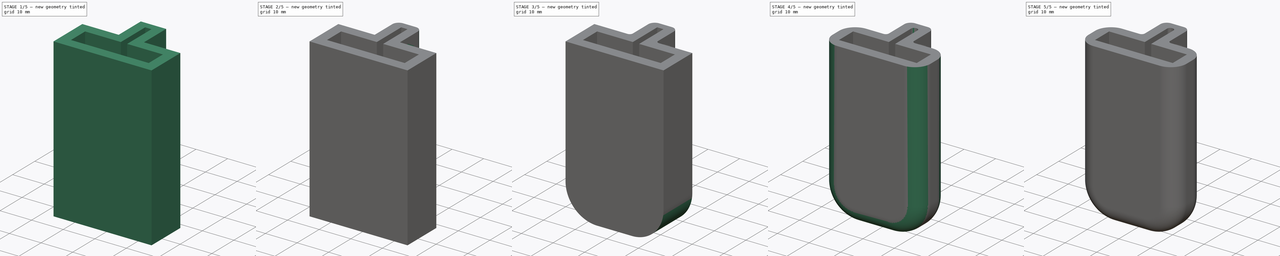
[diagram: build sequence overview — one tinted view per stage of 5, left to right]
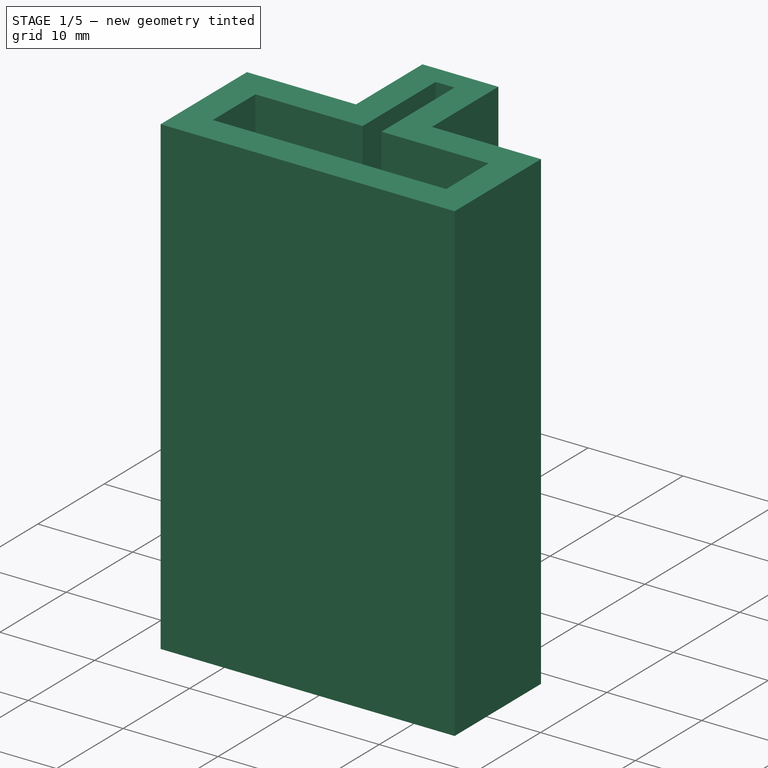
[diagram: stage 1 of 5 — iso view after this stage's code; geometry added in this stage tinted green]
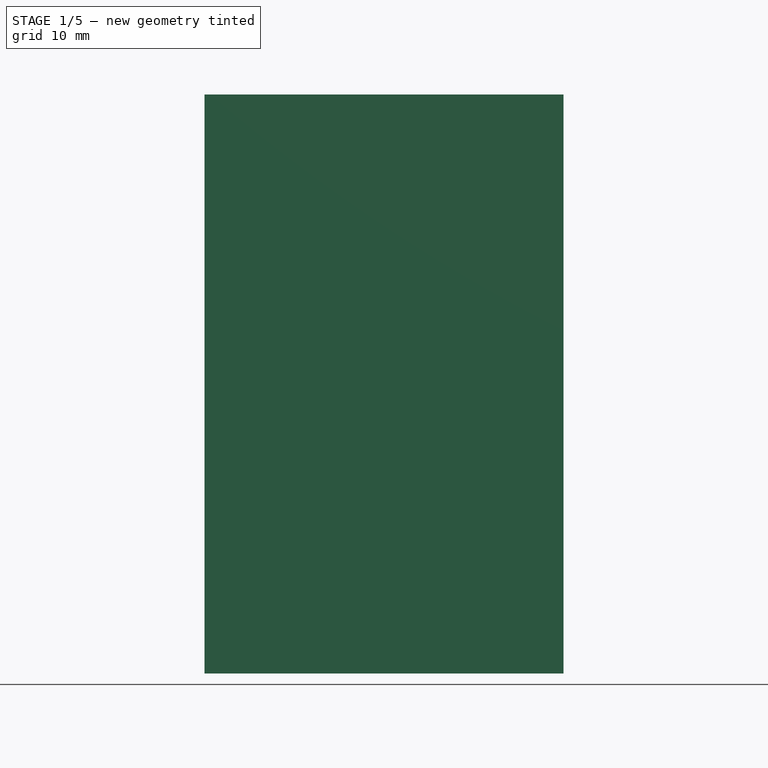
[diagram: stage 1 of 5 — front view after this stage's code; geometry added in this stage tinted green]
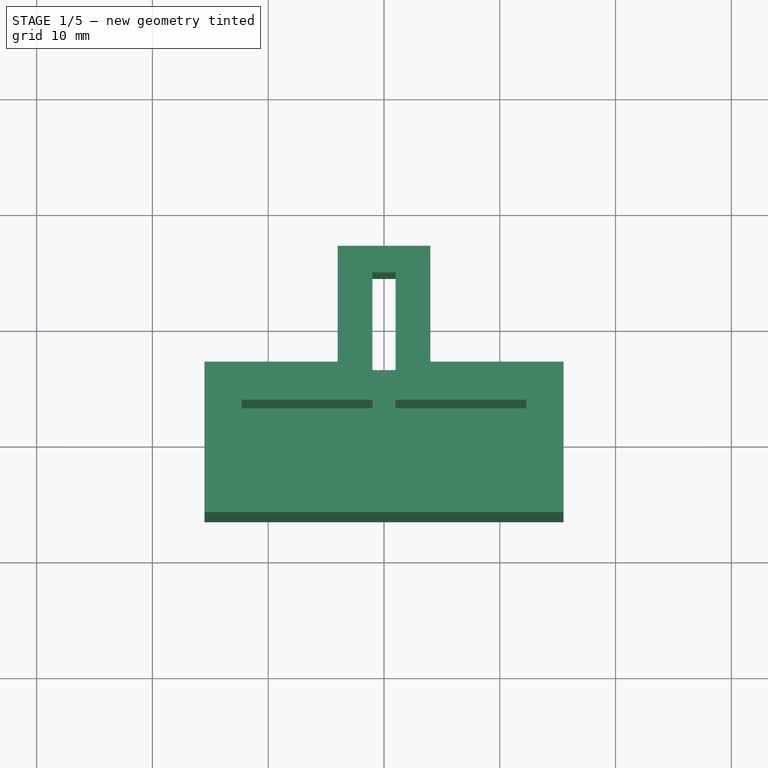
[diagram: stage 1 of 5 — top view after this stage's code; geometry added in this stage tinted green]
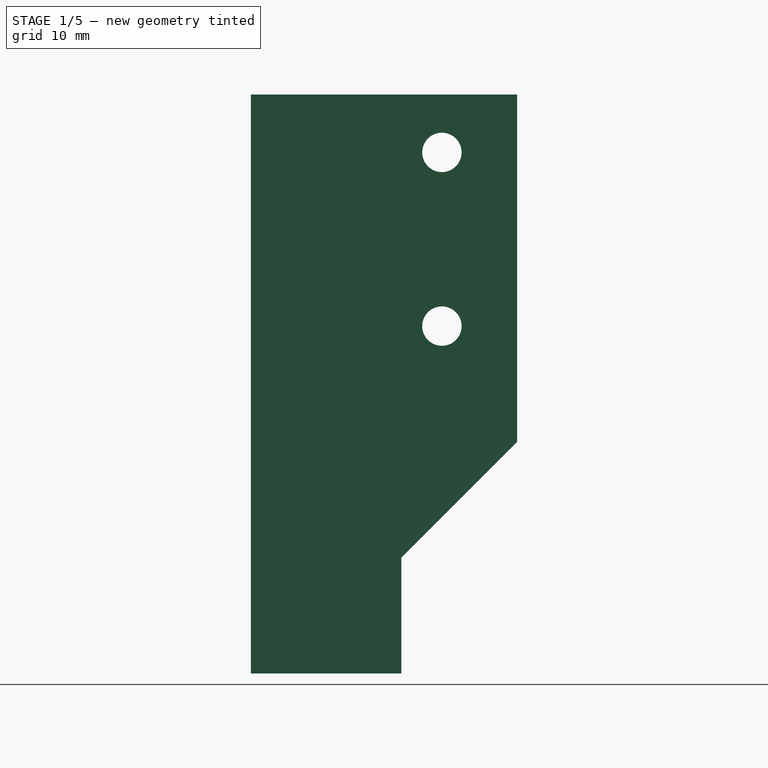
[diagram: stage 1 of 5 — right view after this stage's code; geometry added in this stage tinted green]
FCSTD DOCUMENT  (FreeCAD 0.16R6705 (Git))
Label: Foot
License: All rights reserved
LicenseURL: http://en.wikipedia.org/wiki/All_rights_reserved
objects: PartDesign::Fillet×13, Sketcher::SketchObject×5, PartDesign::Pocket×4, PartDesign::Chamfer×2, PartDesign::Pad×1
note: 30 computed .brp shape members not serialized (recipe doc carries the construction recipe); baked Part::Feature solids carry a one-line shape summary decoded from their .brp

FEATURE [Sketcher::SketchObject] Sketch
  sketch-geometry (13):
    g0: LineSegment StartX=15.5 StartY=6.5 StartZ=0 EndX=15.5 EndY=-6.5 EndZ=0
    g1: LineSegment StartX=15.5 StartY=-6.5 StartZ=0 EndX=-15.5 EndY=-6.5 EndZ=0
    g2: LineSegment StartX=-15.5 StartY=-6.5 StartZ=0 EndX=-15.5 EndY=6.5 EndZ=0
    g3: LineSegment [constr] StartX=-12.2 StartY=3.1 StartZ=0 EndX=12.2 EndY=3.1 EndZ=0
    g4: LineSegment [constr] StartX=12.2 StartY=3.1 StartZ=0 EndX=12.2 EndY=-3.1 EndZ=0
    g5: LineSegment [constr] StartX=12.2 StartY=-3.1 StartZ=0 EndX=-12.2 EndY=-3.1 EndZ=0
    g6: LineSegment [constr] StartX=-12.2 StartY=-3.1 StartZ=0 EndX=-12.2 EndY=3.1 EndZ=0
    g7: LineSegment StartX=-4 StartY=16.5 StartZ=0 EndX=4 EndY=16.5 EndZ=0
    g8: LineSegment StartX=15.5 StartY=6.5 StartZ=0 EndX=4 EndY=6.5 EndZ=0
    g9: LineSegment StartX=-15.5 StartY=6.5 StartZ=0 EndX=-4 EndY=6.5 EndZ=0
    g10: LineSegment StartX=-4 StartY=6.5 StartZ=0 EndX=-4 EndY=16.5 EndZ=0
    g11: LineSegment StartX=4 StartY=16.5 StartZ=0 EndX=4 EndY=6.5 EndZ=0
    g12: LineSegment [constr] StartX=-4 StartY=6.5 StartZ=0 EndX=4 EndY=6.5 EndZ=0
  constraints (38):
    c: Coincident(g0,g1)
    c: Coincident(g1,g2)
    c: Horizontal(g1)
    c: Vertical(g0)
    c: Vertical(g2)
    c: Coincident(g3,g4)
    c: Coincident(g4,g5)
    c: Coincident(g5,g6)
    c: Coincident(g6,g3)
    c: Horizontal(g3)
    c: Horizontal(g5)
    c: Vertical(g4)
    c: Vertical(g6)
    c: Horizontal(g7)
    c: Symmetric(g2,g0,g-1)
    c: Symmetric(g7,g7,g-2)
    c: Symmetric(g5,g3,g-1)
    c: DistanceX(g5,g4) = 24.4
    c: DistanceY(g5,g3) = 6.2
    c: DistanceX(g1,g5) = 3.3
    c: DistanceY(g2,g7) = 10
    c: DistanceX(g7,g7) = 8
    c: DistanceY(g1,g2) = 13
    c: Horizontal(g9)
    c: Coincident(g9,g10)
    c: Vertical(g10)
    c: Horizontal(g8)
    c: Coincident(g11,g7)
    c: Vertical(g11)
    c: Coincident(g8,g11)
    c: Coincident(g12,g9)
    c: Coincident(g12,g8)
    c: Horizontal(g12)
    c: Coincident(g10,g7)
    c: Coincident(g9,g2)
    c: Coincident(g0,g8)
    c: DistanceX(g1,g0) = 31
    c: DistanceY(g1,g5) = 3.4
FEATURE [PartDesign::Pad] Pad
  Length = 50
  Length2 = 100
  Sketch = -> Sketch
  Type = 0
FEATURE [Sketcher::SketchObject] Sketch001
  Placement = pos=(0,0,50) rot=(0,0,1;0rad)
  Support = -> Pad [Face10]
  sketch-geometry (9):
    g0: LineSegment StartX=-12.3 StartY=3.2 StartZ=0 EndX=-12.3 EndY=-3.2 EndZ=0
    g1: LineSegment StartX=-12.3 StartY=-3.2 StartZ=0 EndX=12.3 EndY=-3.2 EndZ=0
    g2: LineSegment StartX=12.3 StartY=-3.2 StartZ=0 EndX=12.3 EndY=3.2 EndZ=0
    g3: LineSegment StartX=12.3 StartY=3.2 StartZ=0 EndX=1 EndY=3.2 EndZ=0
    g4: LineSegment StartX=1 StartY=3.2 StartZ=0 EndX=1 EndY=14.2 EndZ=0
    g5: LineSegment StartX=1 StartY=14.2 StartZ=0 EndX=-1 EndY=14.2 EndZ=0
    g6: LineSegment StartX=-1 StartY=14.2 StartZ=0 EndX=-1 EndY=3.2 EndZ=0
    g7: LineSegment StartX=-1 StartY=3.2 StartZ=0 EndX=-12.3 EndY=3.2 EndZ=0
    g8: LineSegment [constr] StartX=-1 StartY=3.2 StartZ=0 EndX=1 EndY=3.2 EndZ=0
  constraints (25):
    c: Vertical(g0)
    c: Coincident(g0,g1)
    c: Horizontal(g1)
    c: Coincident(g1,g2)
    c: Vertical(g2)
    c: Coincident(g2,g3)
    c: Horizontal(g3)
    c: Coincident(g3,g4)
    c: Coincident(g4,g5)
    c: Horizontal(g5)
    c: Coincident(g5,g6)
    c: Vertical(g6)
    c: Coincident(g6,g7)
    c: Coincident(g7,g0)
    c: Horizontal(g7)
    c: Vertical(g4)
    c: Coincident(g8,g6)
    c: Coincident(g8,g3)
    c: Horizontal(g8)
    c: DistanceX(g5,g4) = 2
    c: DistanceY(g2,g4) = 11
    c: DistanceX(g0,g1) = 24.6
    c: Symmetric(g0,g2,g-1)
    c: Symmetric(g6,g3,g-2)
    c: DistanceY(g1,g2) = 6.4
FEATURE [PartDesign::Pocket] Pocket
  Length = 42
  Sketch = -> Sketch001
  Type = 0
FEATURE [Sketcher::SketchObject] Sketch002
  Placement = pos=(-15.5,0,0) rot=(0.57735,-0.57735,-0.57735;2.0944rad)
  Support = -> Pocket [Face7]
  sketch-geometry (4):
    g0: LineSegment StartX=-21.5 StartY=25 StartZ=0 EndX=-6.5 EndY=10 EndZ=0
    g1: LineSegment StartX=-6.5 StartY=10 StartZ=0 EndX=-6.5 EndY=0 EndZ=0
    g2: LineSegment StartX=-6.5 StartY=0 StartZ=0 EndX=-21.5 EndY=0 EndZ=0
    g3: LineSegment StartX=-21.5 StartY=0 StartZ=0 EndX=-21.5 EndY=25 EndZ=0
  constraints (12):
    c: Coincident(g0,g1)
    c: Coincident(g1,g2)
    c: Coincident(g2,g3)
    c: Coincident(g3,g0)
    c: Horizontal(g2)
    c: Vertical(g1)
    c: Vertical(g3)
    c: PointOnObject(g2,g-1)
    c: DistanceX(g1,g-1) = 6.5
    c: DistanceY(g1,g0) = 10
    c: DistanceY(g2,g0) = 25
    c: DistanceX(g2,g1) = 15
FEATURE [PartDesign::Pocket] Pocket001
  Length = 5
  Sketch = -> Sketch002
  Type = 1
FEATURE [Sketcher::SketchObject] Sketch003  label="Fixing Holes"
  Placement = pos=(4,0,0) rot=(0.57735,0.57735,0.57735;2.0944rad)
  Support = -> Pocket001 [Face6]
  sketch-geometry (3):
    g0: Circle CenterX=10 CenterY=45 CenterZ=0 NormalX=0 NormalY=0 NormalZ=1 Radius=1.7
    g1: Circle CenterX=10 CenterY=30 CenterZ=0 NormalX=0 NormalY=0 NormalZ=1 Radius=1.7
    g2: LineSegment [constr] StartX=10 StartY=45 StartZ=0 EndX=10 EndY=30 EndZ=0
  constraints (8):
    c: Radius(g1) = 1.7
    c: Equal(g1,g0)
    c: Coincident(g2,g1)
    c: Coincident(g0,g2)
    c: Vertical(g2)
    c: DistanceX(g-1,g1) = 10
    c: DistanceY(g1,g0) = 15
    c: DistanceY(g-1,g1) = 30
FEATURE [PartDesign::Pocket] Pocket002
  Length = 5
  Sketch = -> Sketch003
  Type = 1
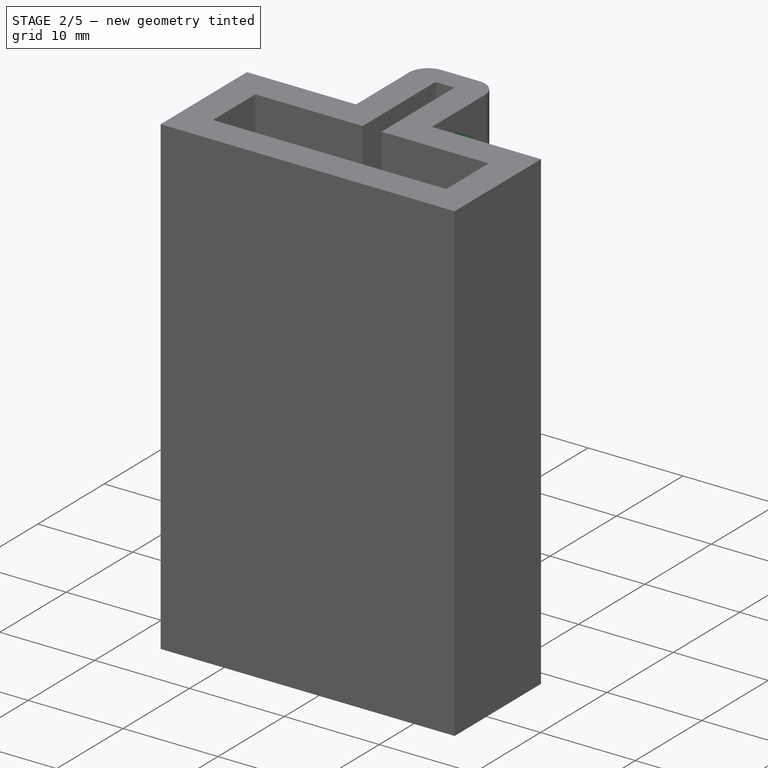
[diagram: stage 2 of 5 — iso view after this stage's code; geometry added in this stage tinted green]
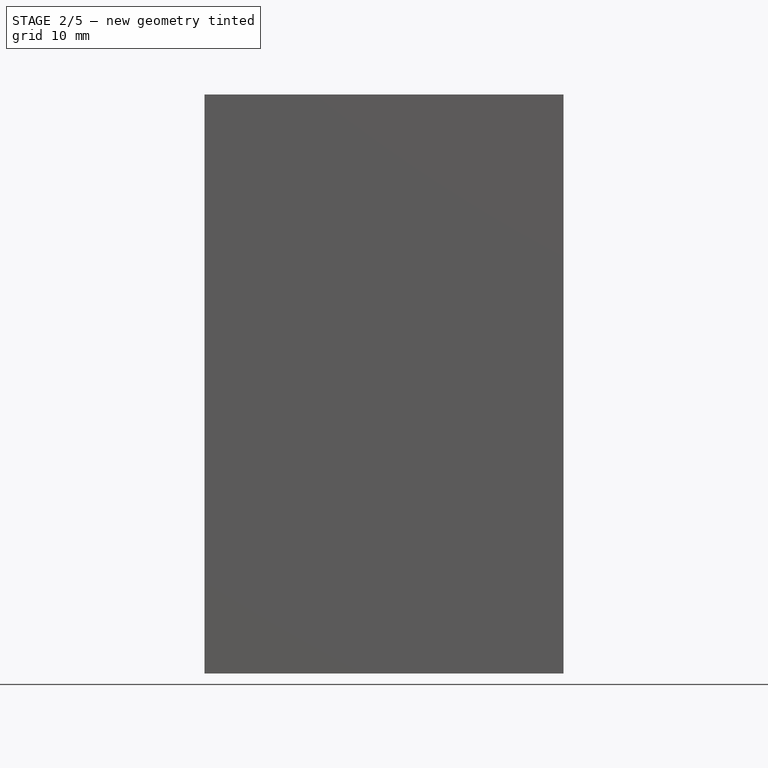
[diagram: stage 2 of 5 — front view after this stage's code; geometry added in this stage tinted green]
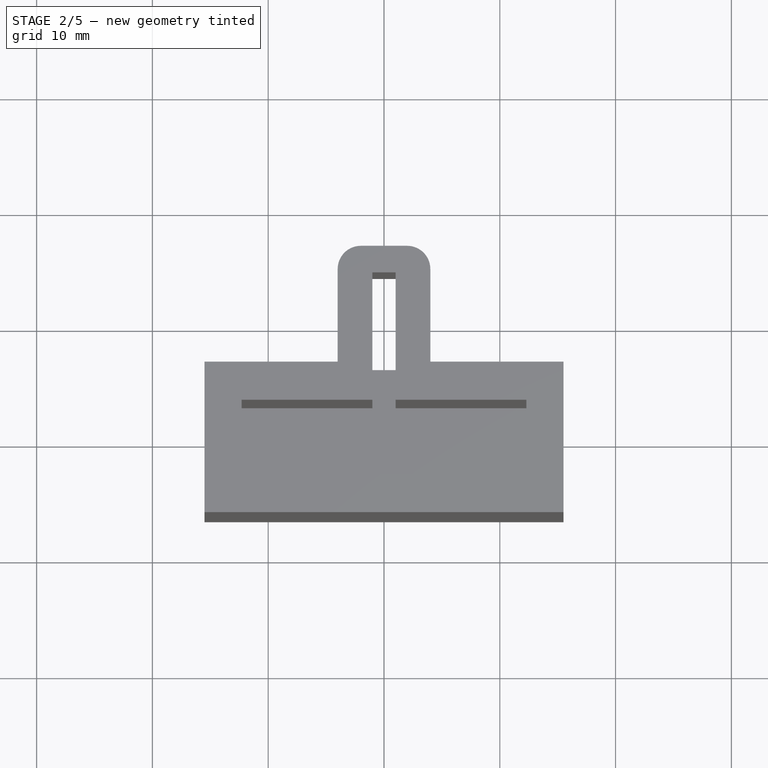
[diagram: stage 2 of 5 — top view after this stage's code; geometry added in this stage tinted green]
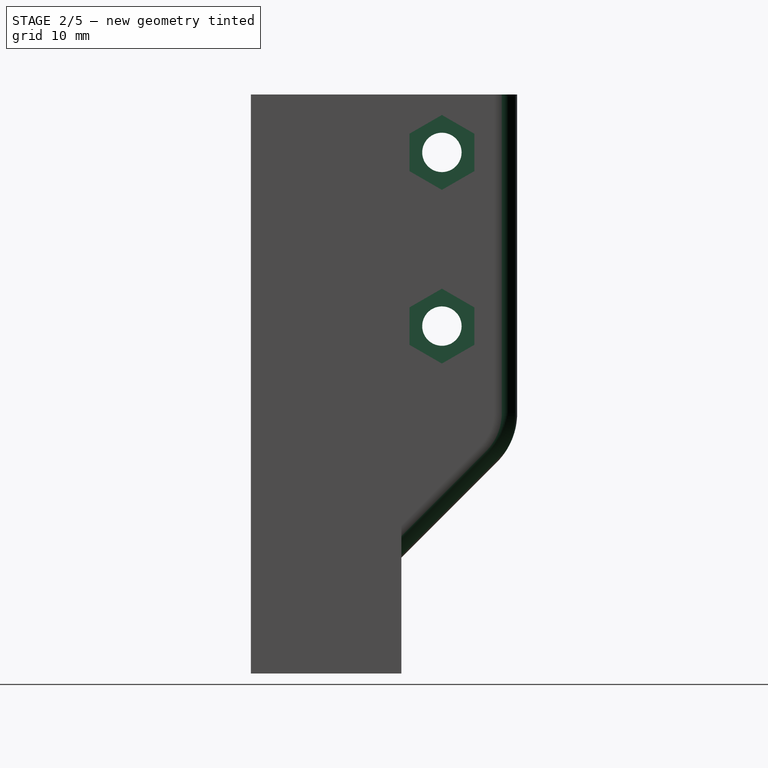
[diagram: stage 2 of 5 — right view after this stage's code; geometry added in this stage tinted green]
FEATURE [Sketcher::SketchObject] Sketch004  label="Nut Recess"
  Placement = pos=(4,0,0) rot=(0.57735,0.57735,0.57735;2.0944rad)
  Support = -> Pocket002 [Face12]
  sketch-geometry (15):
    g0: LineSegment [constr] StartX=10 StartY=45 StartZ=0 EndX=10 EndY=30 EndZ=0
    g1: LineSegment StartX=10 StartY=48.2332 StartZ=0 EndX=7.2 EndY=46.6166 EndZ=0
    g2: LineSegment StartX=7.2 StartY=46.6166 StartZ=0 EndX=7.2 EndY=43.3834 EndZ=0
    g3: LineSegment StartX=7.2 StartY=43.3834 StartZ=0 EndX=10 EndY=41.7668 EndZ=0
    g4: LineSegment StartX=10 StartY=41.7668 StartZ=0 EndX=12.8 EndY=43.3834 EndZ=0
    g5: LineSegment StartX=12.8 StartY=43.3834 StartZ=0 EndX=12.8 EndY=46.6166 EndZ=0
    g6: LineSegment StartX=12.8 StartY=46.6166 StartZ=0 EndX=10 EndY=48.2332 EndZ=0
    g7: Circle [constr] CenterX=10 CenterY=45 CenterZ=0 NormalX=0 NormalY=0 NormalZ=1 Radius=3.23316
    g8: LineSegment StartX=10 StartY=33.2332 StartZ=0 EndX=7.2 EndY=31.6166 EndZ=0
    g9: LineSegment StartX=7.2 StartY=31.6166 StartZ=0 EndX=7.2 EndY=28.3834 EndZ=0
    g10: LineSegment StartX=7.2 StartY=28.3834 StartZ=0 EndX=10 EndY=26.7668 EndZ=0
    g11: LineSegment StartX=10 StartY=26.7668 StartZ=0 EndX=12.8 EndY=28.3834 EndZ=0
    g12: LineSegment StartX=12.8 StartY=28.3834 StartZ=0 EndX=12.8 EndY=31.6166 EndZ=0
    g13: LineSegment StartX=12.8 StartY=31.6166 StartZ=0 EndX=10 EndY=33.2332 EndZ=0
    g14: Circle [constr] CenterX=10 CenterY=30 CenterZ=0 NormalX=0 NormalY=0 NormalZ=1 Radius=3.23316
  constraints (36):
    c: Vertical(g0)
    c: Coincident(g1,g2)
    c: Coincident(g2,g3)
    c: Coincident(g3,g4)
    c: Coincident(g4,g5)
    c: Coincident(g5,g6)
    c: Coincident(g6,g1)
    c: Equal(g1, g2-g6) x5
    c: PointOnObject(g1,g7)
    c: PointOnObject(g2,g7)
    c: PointOnObject(g3,g7)
    c: PointOnObject(g4,g7)
    c: PointOnObject(g5,g7)
    c: PointOnObject(g6,g7)
    c: Coincident(g7,g0)
    c: Coincident(g8,g9)
    c: Coincident(g9,g10)
    c: Coincident(g10,g11)
    c: Coincident(g11,g12)
    c: Coincident(g12,g13)
    c: Coincident(g13,g8)
    c: Equal(g8, g9-g13) x5
    c: PointOnObject(g8,g14)
    c: PointOnObject(g9,g14)
    c: PointOnObject(g10,g14)
    c: PointOnObject(g11,g14)
    c: PointOnObject(g12,g14)
    c: PointOnObject(g13,g14)
    c: Coincident(g14,g0)
    c: Vertical(g9)
    c: Vertical(g2)
    c: Distance(g10,g12) = 5.6
    c: Distance(g3,g5) = 5.6
    c: DistanceY(g0,g0) = 15
    c: DistanceX(g-1,g0) = 10
    c: DistanceY(g0) = 30
FEATURE [PartDesign::Pocket] Pocket003
  Length = 2.2
  Sketch = -> Sketch004
  Type = 0
FEATURE [PartDesign::Fillet] Fillet
  Base = -> Pocket003 [Edge40]
  Radius = 6
FEATURE [PartDesign::Fillet] Fillet001
  Base = -> Fillet [Edge8]
  Radius = 2
FEATURE [PartDesign::Fillet] Fillet002
  Base = -> Fillet001 [Edge3]
  Radius = 2
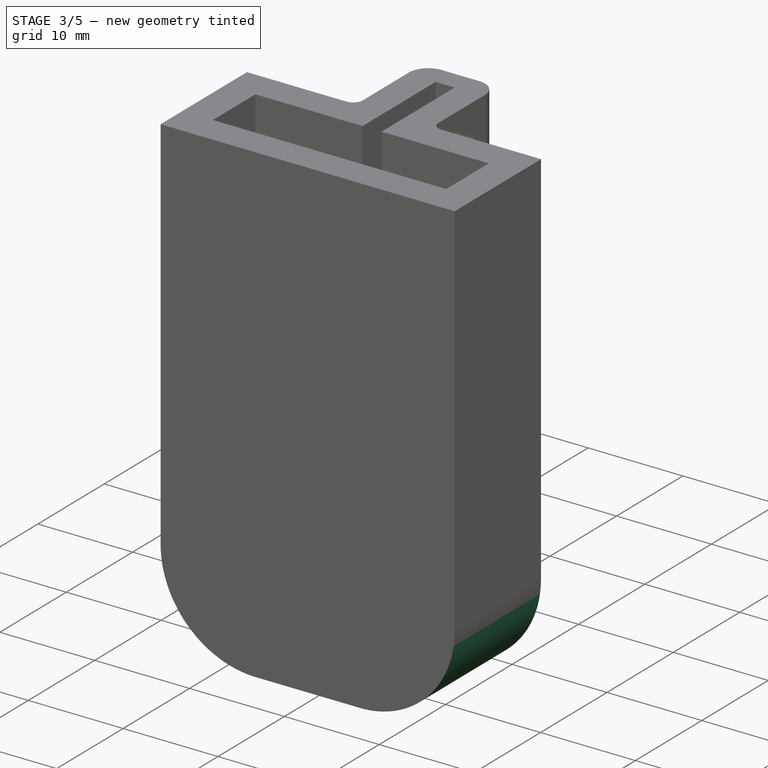
[diagram: stage 3 of 5 — iso view after this stage's code; geometry added in this stage tinted green]
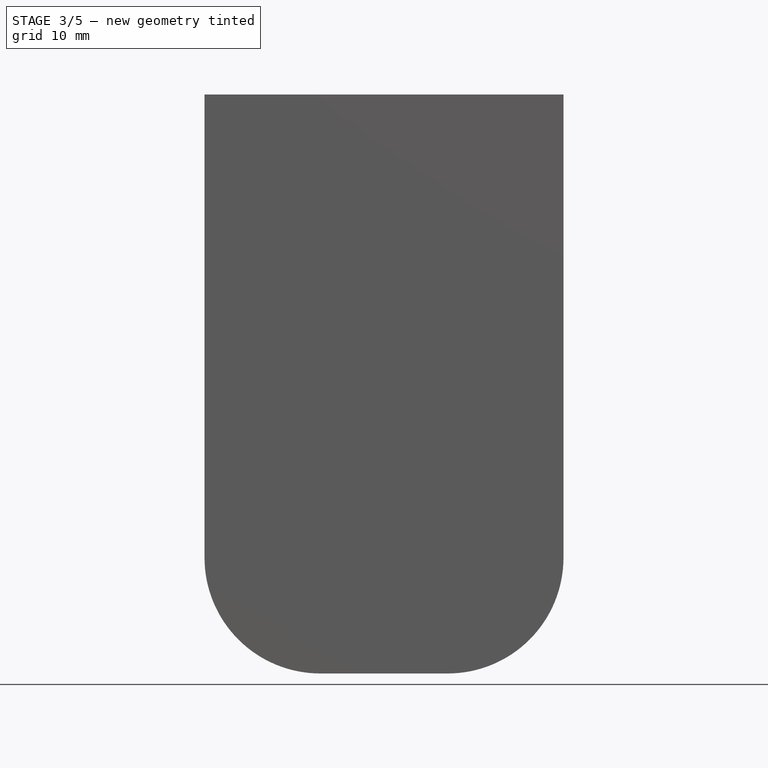
[diagram: stage 3 of 5 — front view after this stage's code; geometry added in this stage tinted green]
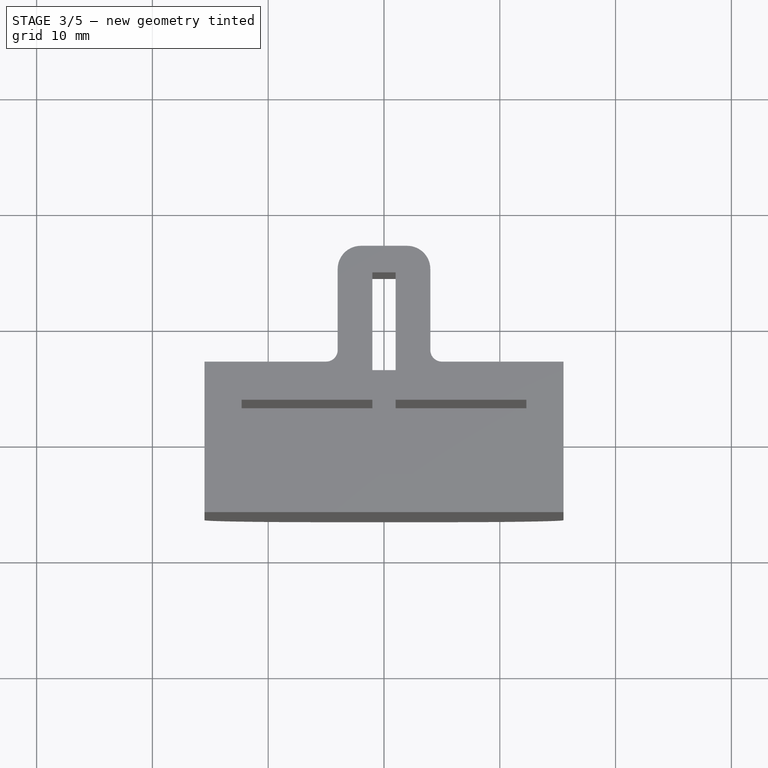
[diagram: stage 3 of 5 — top view after this stage's code; geometry added in this stage tinted green]
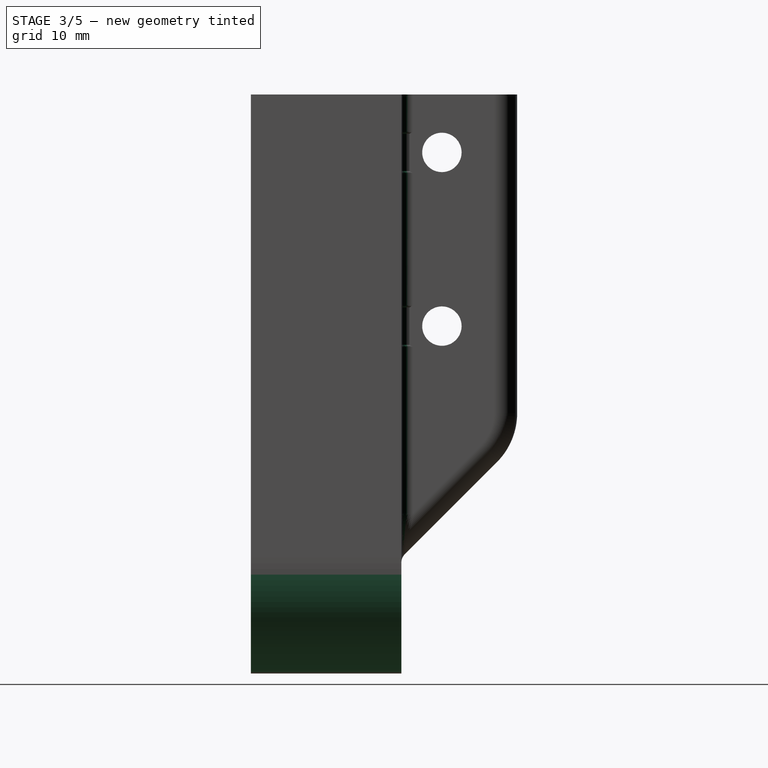
[diagram: stage 3 of 5 — right view after this stage's code; geometry added in this stage tinted green]
FEATURE [PartDesign::Fillet] Fillet003
  Base = -> Fillet002 [Edge26]
  Radius = 1
FEATURE [PartDesign::Fillet] Fillet004
  Base = -> Fillet003 [Edge36]
  Radius = 1
FEATURE [PartDesign::Fillet] Fillet005
  Base = -> Fillet004 [Edge112]
  Radius = 10
FEATURE [PartDesign::Fillet] Fillet006
  Base = -> Fillet005 [Edge47]
  Radius = 10
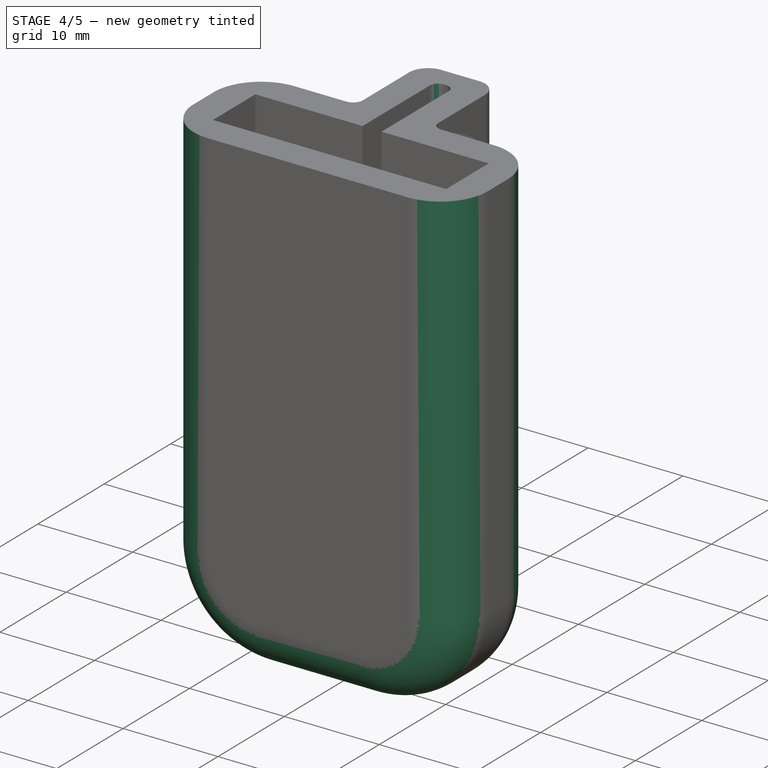
[diagram: stage 4 of 5 — iso view after this stage's code; geometry added in this stage tinted green]
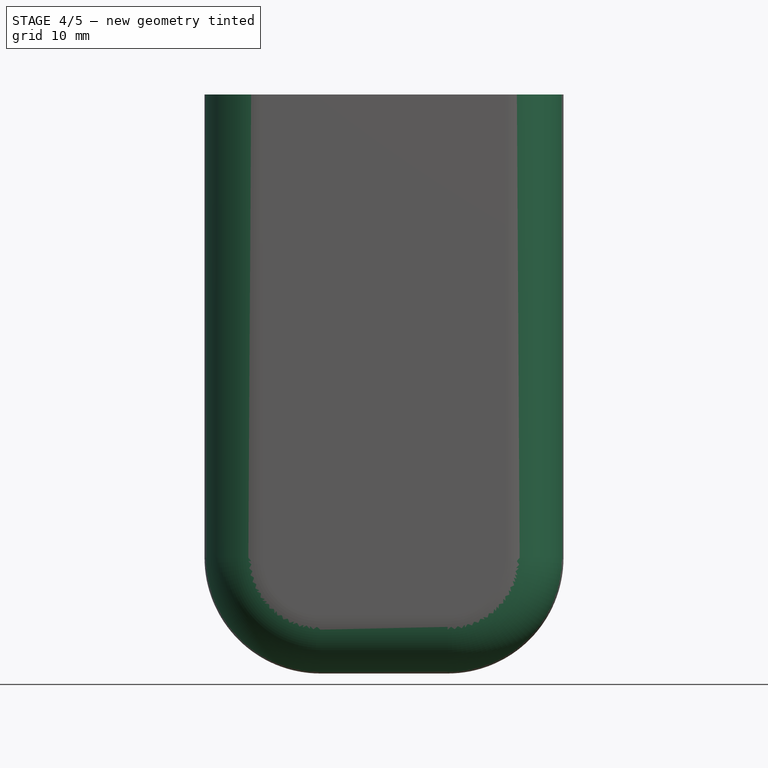
[diagram: stage 4 of 5 — front view after this stage's code; geometry added in this stage tinted green]
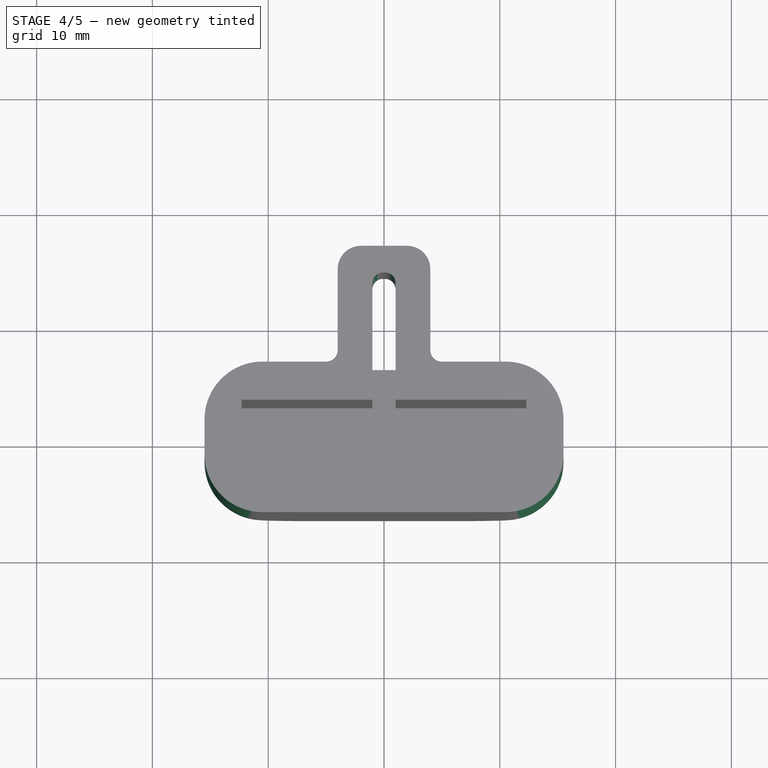
[diagram: stage 4 of 5 — top view after this stage's code; geometry added in this stage tinted green]
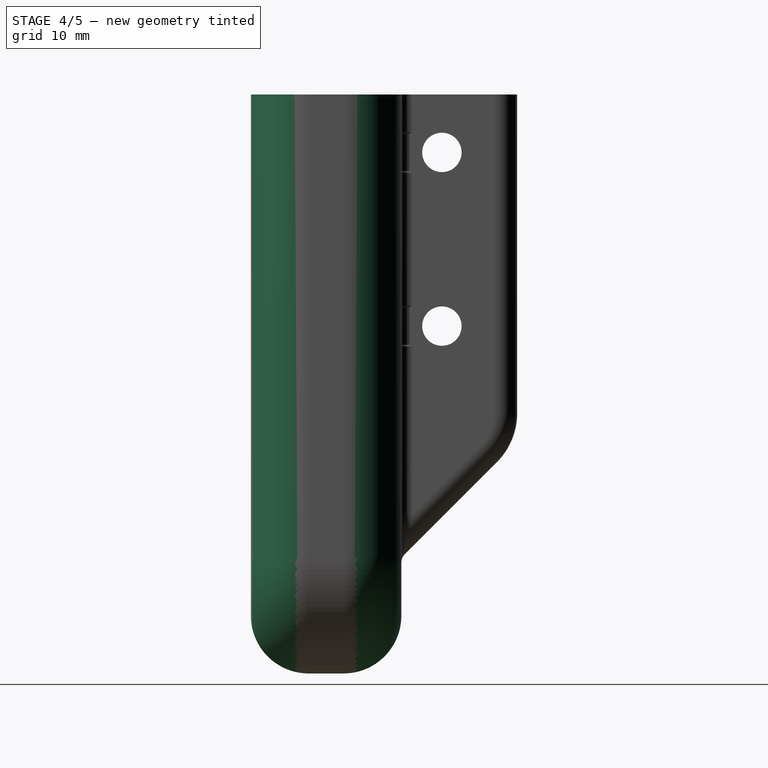
[diagram: stage 4 of 5 — right view after this stage's code; geometry added in this stage tinted green]
FEATURE [PartDesign::Fillet] Fillet007
  Base = -> Fillet006 [Edge4]
  Radius = 5
FEATURE [PartDesign::Fillet] Fillet008
  Base = -> Fillet007 [Edge109]
  Radius = 5
FEATURE [PartDesign::Fillet] Fillet009
  Base = -> Fillet008 [Edge98]
  Radius = 0.9
FEATURE [PartDesign::Fillet] Fillet010
  Base = -> Fillet009 [Edge27]
  Radius = 0.9
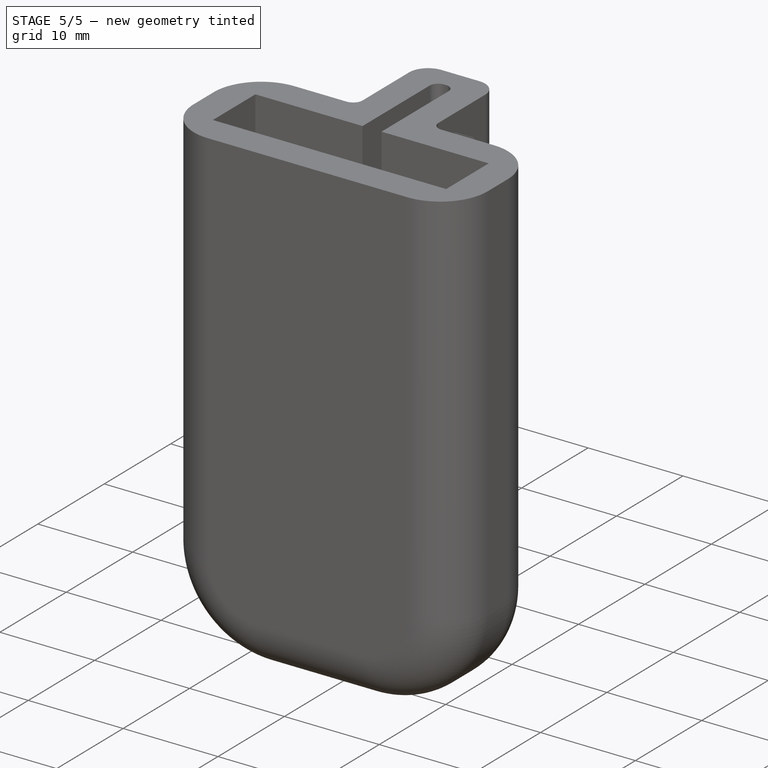
[diagram: stage 5 of 5 — iso view after this stage's code; geometry added in this stage tinted green]
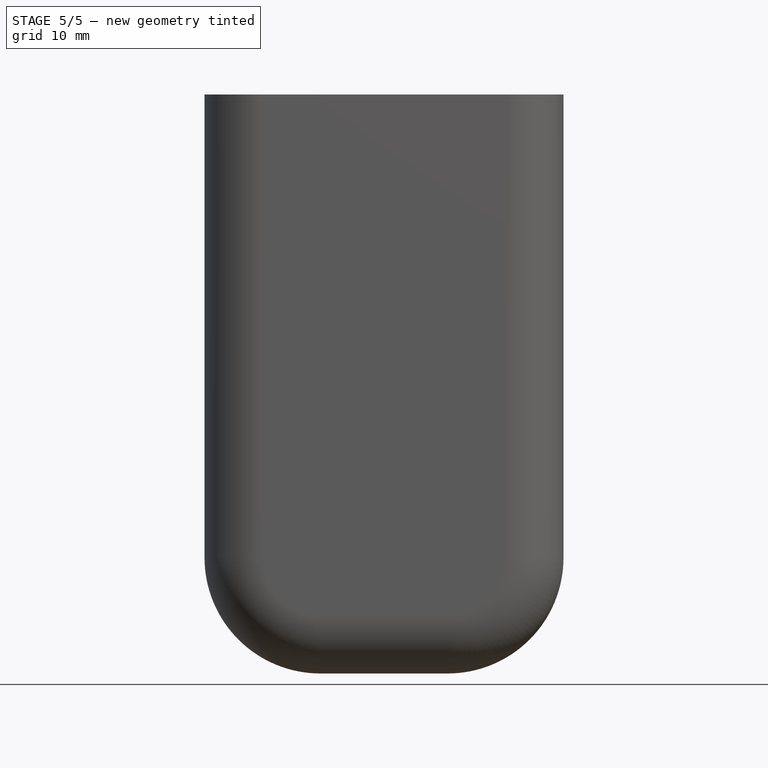
[diagram: stage 5 of 5 — front view after this stage's code; geometry added in this stage tinted green]
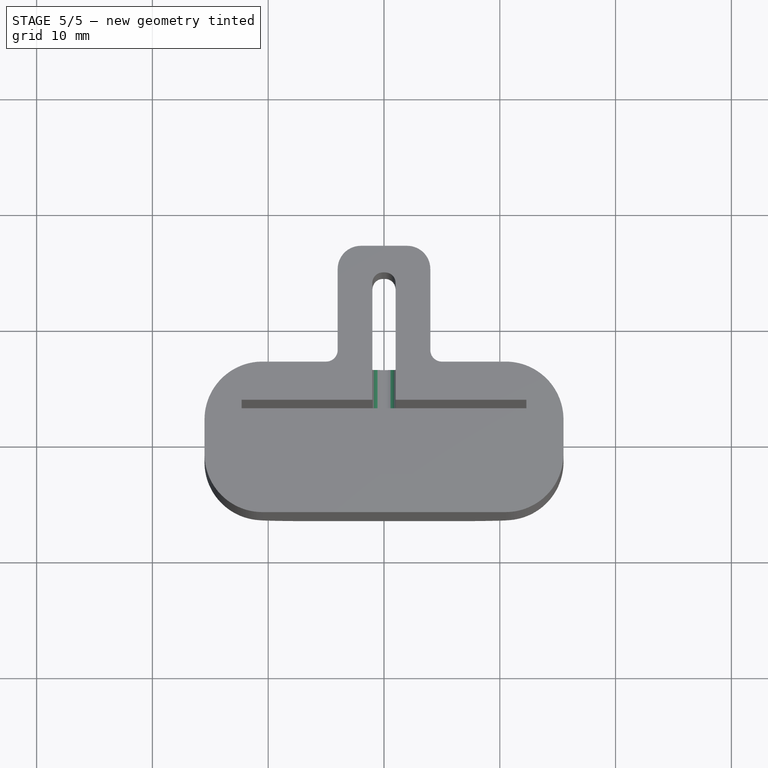
[diagram: stage 5 of 5 — top view after this stage's code; geometry added in this stage tinted green]
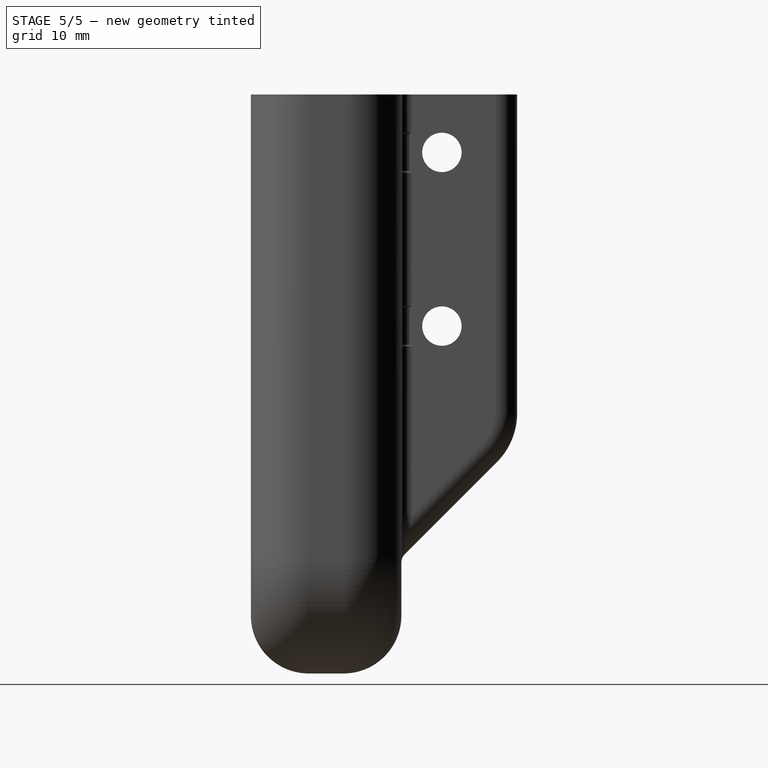
[diagram: stage 5 of 5 — right view after this stage's code; geometry added in this stage tinted green]
FEATURE [PartDesign::Fillet] Fillet011
  Base = -> Fillet010 [Edge38]
  Radius = 0.9
FEATURE [PartDesign::Fillet] Fillet012
  Base = -> Fillet011 [Edge77]
  Radius = 0.9
FEATURE [PartDesign::Chamfer] Chamfer
  Base = -> Fillet012 [Edge123]
  Size = 1.7
FEATURE [PartDesign::Chamfer] Chamfer001
  Base = -> Chamfer [Edge13]
  Size = 1.7
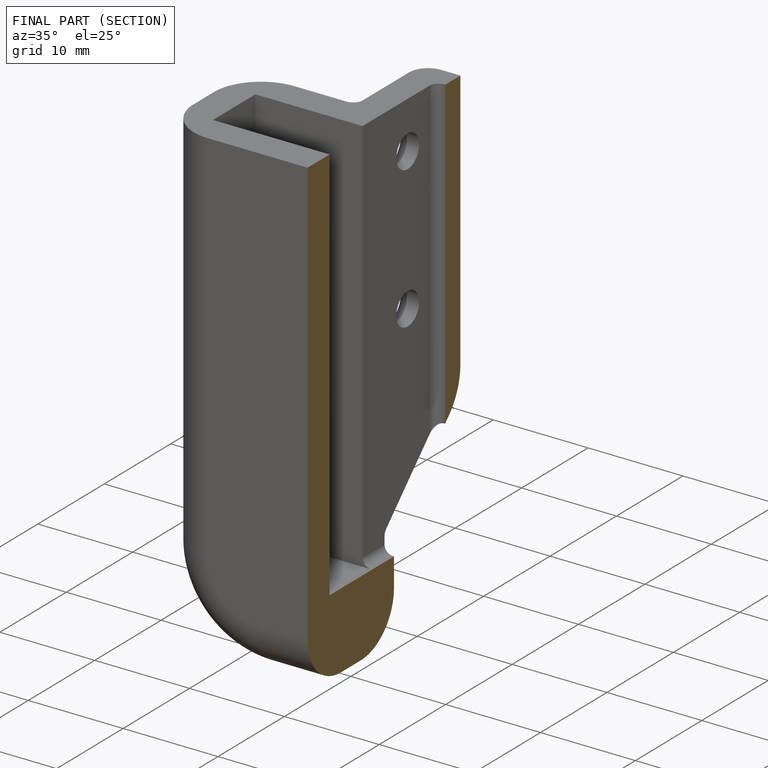
[diagram: finished part — half-section view (interior)]
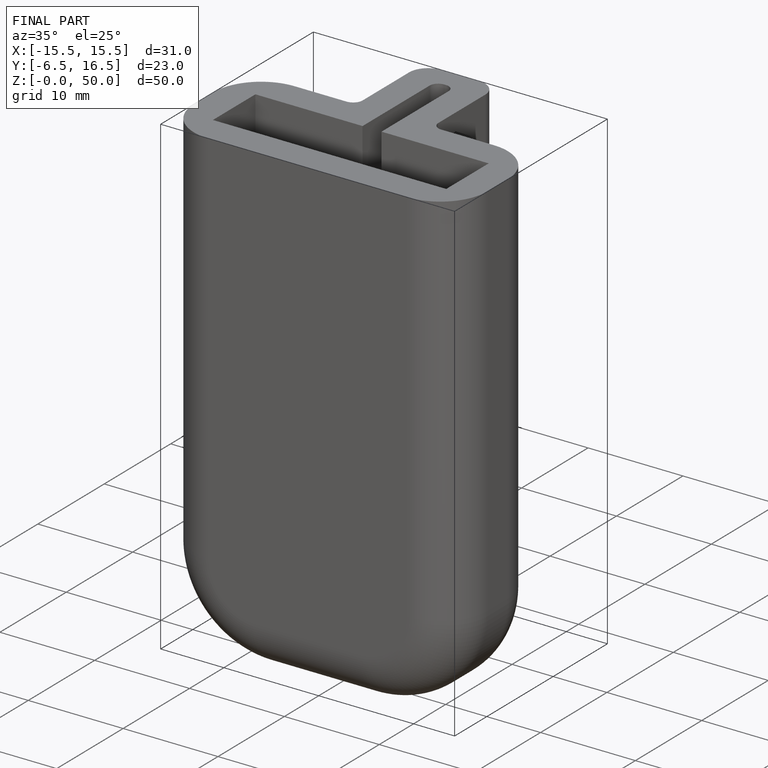
[diagram: finished part — iso view with bounding-box wireframe]
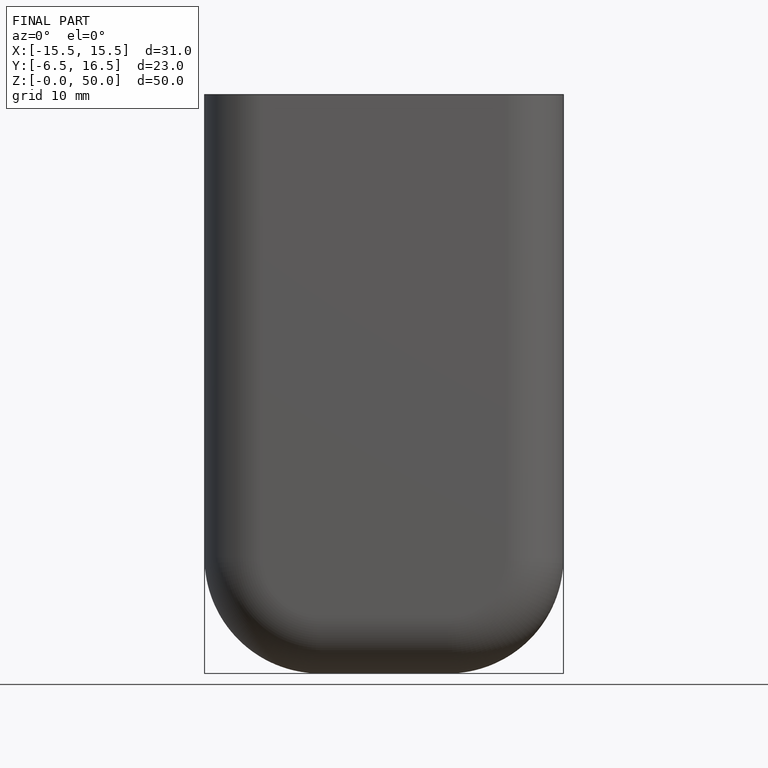
[diagram: finished part — front view with bounding-box wireframe]
